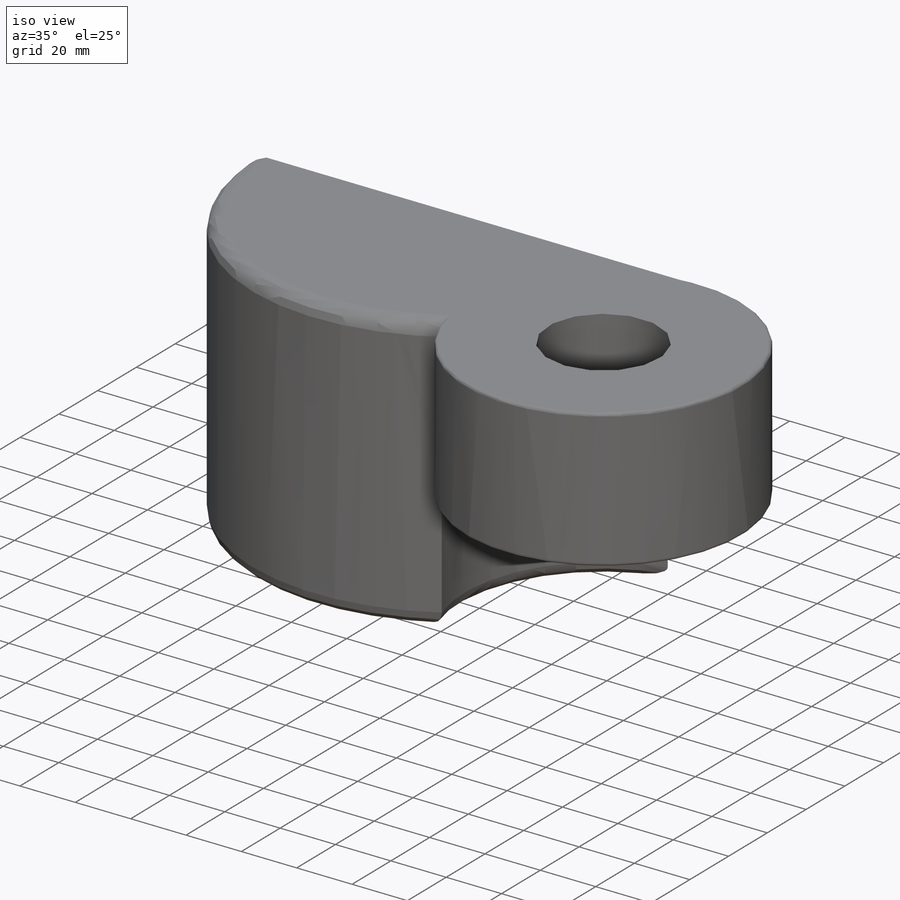
[diagram: iso view]
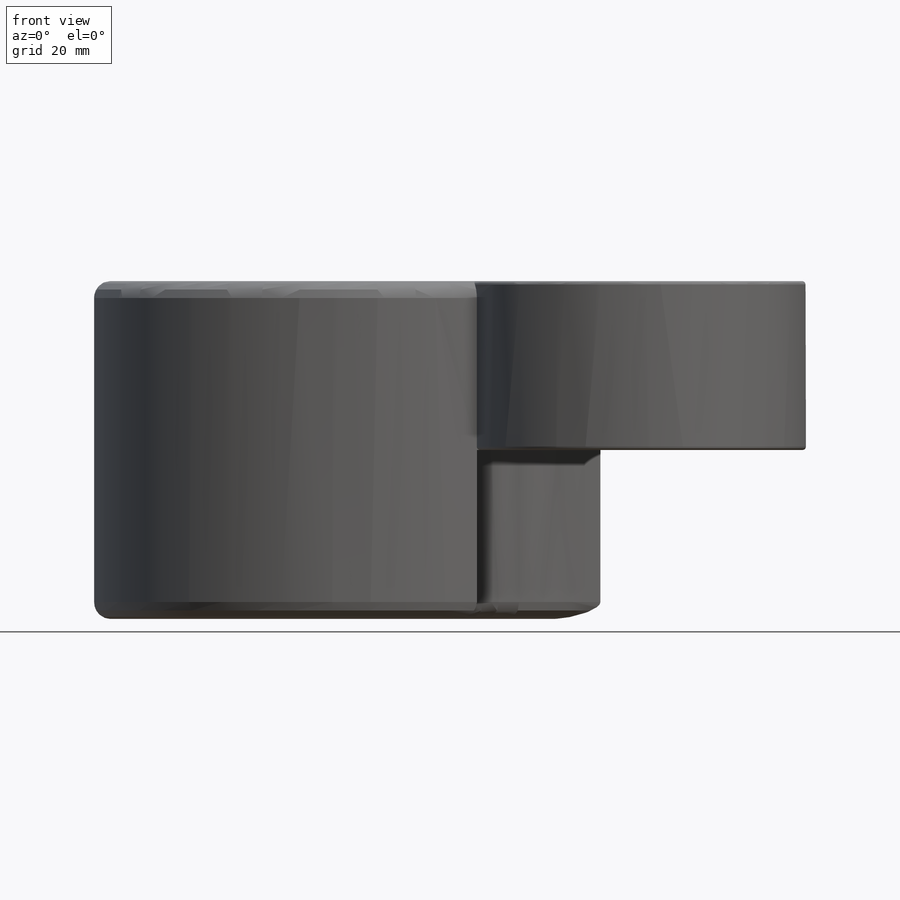
[diagram: front view]
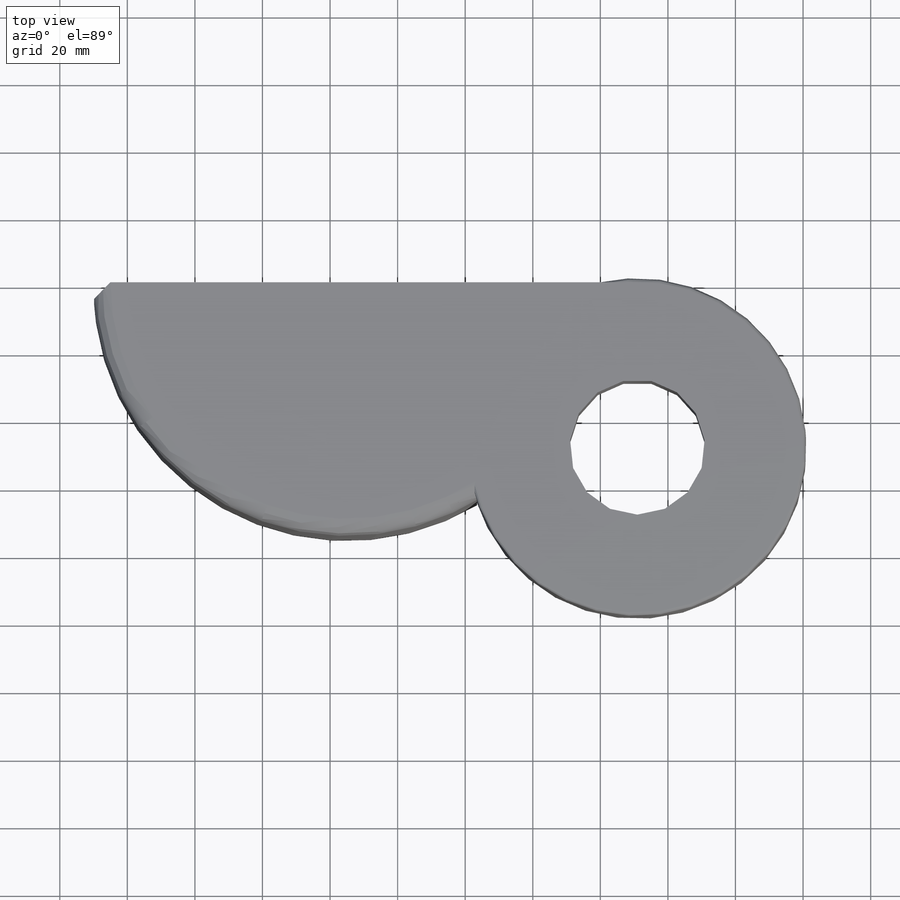
[diagram: top view]
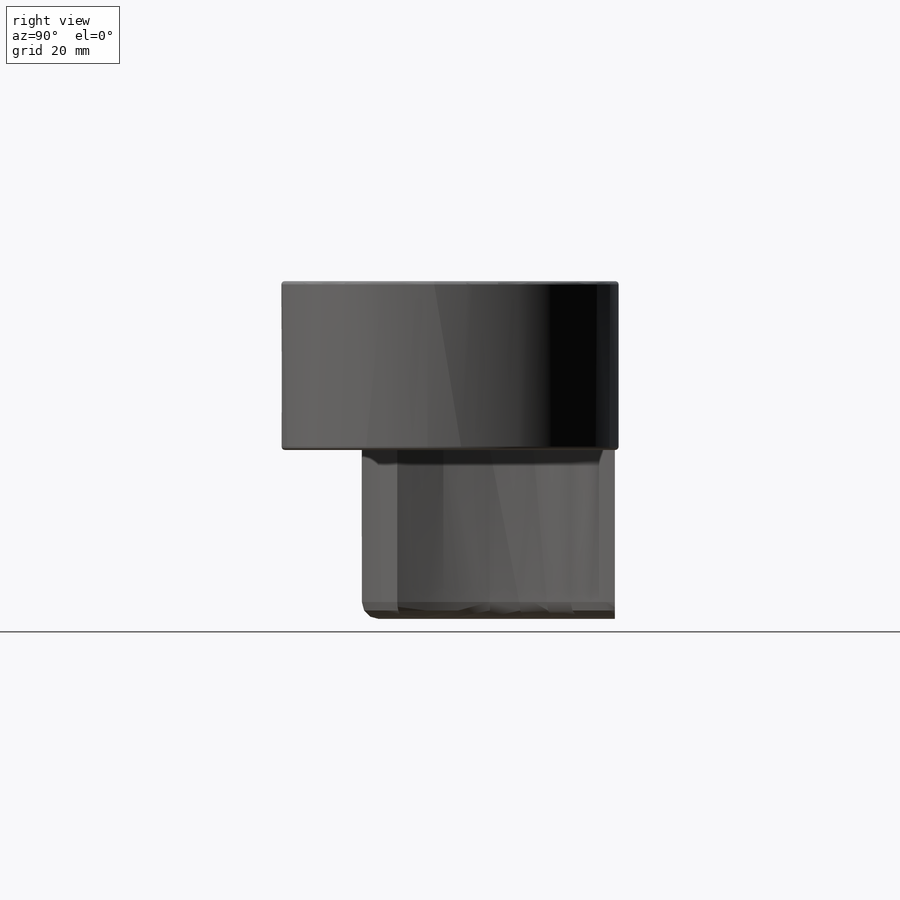
[diagram: right view]
SOLIDWORKS PART (.sldprt)
format: sldprt  version: not decoded by parser v0  size: 281,600 bytes
history: native  units: mm
features: sketch x6, extrude x4, fillet x4, cut_extrude x2, material x1, shell x1, chamfer x1 (+13 scaffold rows collapsed)
feature tree (32):
  scaffold x13  (default folders/planes/origin — collapsed)
  material  "Material <not specified>"
  sketch  "Sketch2"  dims[c1.D2=75.0mm c1.D1=150.0mm c2.D2=150.0mm]
  extrude  "Extrude1"  Depth=100mm
  shell  "Shell1"  Thickness=5mm
  sketch  "Sketch3"  dims[D1=100.0mm D2=100.0mm]
  extrude  "Extrude2"  Depth=50mm
  sketch  "Sketch4"  dims[D1=40.0mm]
  cut_extrude  "Cut-Extrude1"  [1 undecoded]
  sketch  "Sketch5"
  cut_extrude  "Cut-Extrude2"  Depth=50mm
  sketch  "Sketch6"
  extrude  "Extrude3"  [1 undecoded]
  sketch  "Sketch7"
  extrude  "Extrude4"  Depth=5mm
  fillet  "Fillet1"  Radius=5mm
  fillet  "Fillet2"  Radius=5mm
  fillet  "Fillet3"  Radius=1mm
  fillet  "Fillet4"  Radius=1mm
  chamfer  "Chamfer2"  Distance=5mm Angle=45deg
decode coverage: 13 of 18 modeling features carry decoded parameters
note: 2 parameter values undecoded
note: suppression state not decoded; provenance and decode notes live in map.json
